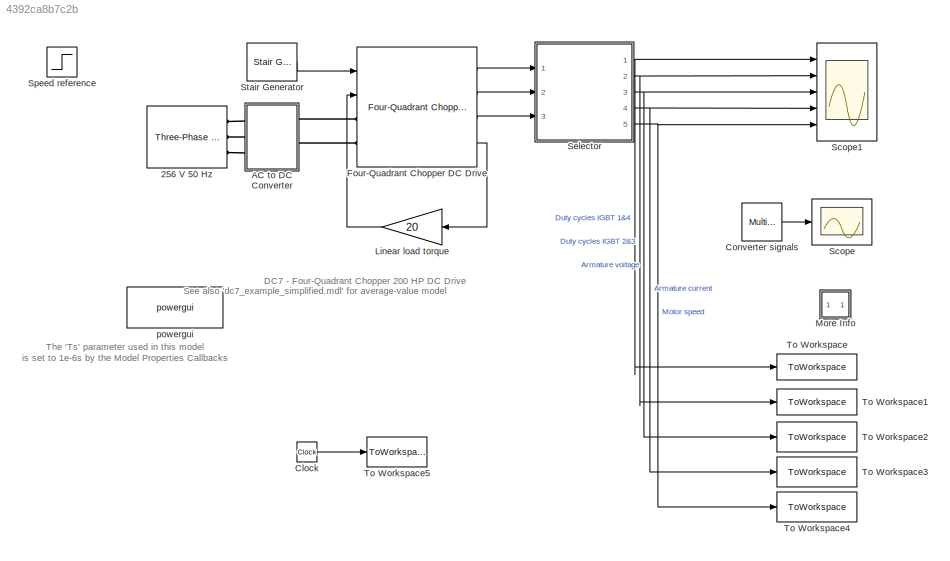
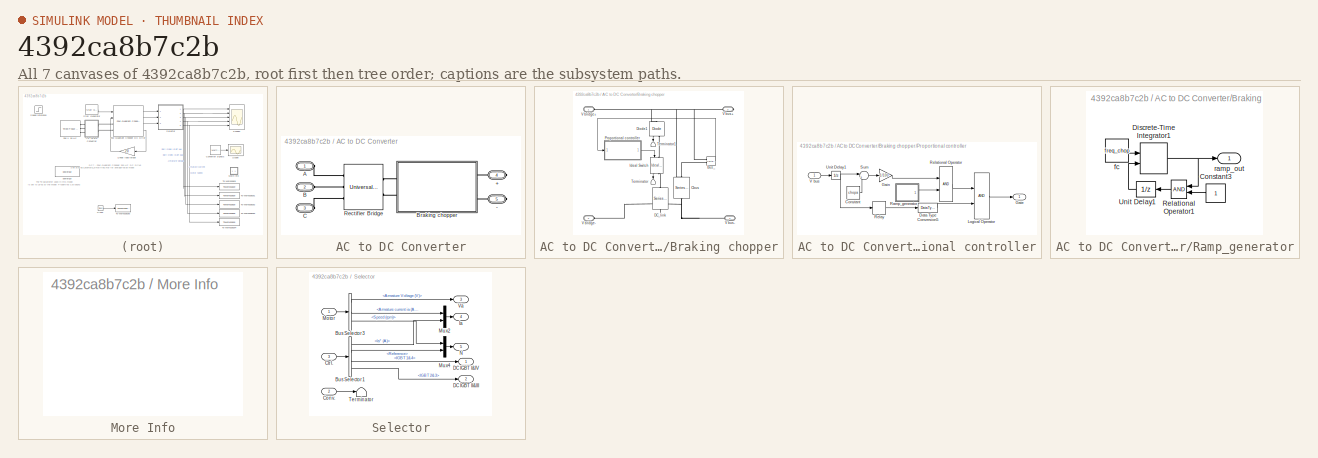
[diagram: thumbnail index - all 7 canvases of the model, root first then tree order]
MODEL slx_4392ca8b7c2b
KIND model
CONFIG AbsTol = auto
CONFIG EnableMultiTasking = on
CONFIG FixedStep = auto
CONFIG MaxStep = auto
CONFIG MinStep = auto
CONFIG PreLoadFcn = assignin('base','Ts',1e-6)
CONFIG RelTol = 1e-3
CONFIG SampleTimeConstraint = Unconstrained
CONFIG Solver = FixedStepDiscrete
CONFIG SolverName = FixedStepDiscrete
CONFIG StartTime = 0.0
CONFIG StopTime = 10
BLOCK [Reference] 256 V  50 Hz  REF=powerlib/Electrical
Sources/Three-Phase Source
  Ports = [0, 0, 0, 0, 0, 0, 3]
  SourceBlock = powerlib/Electrical\nSources/Three-Phase Source
  SourceProductBaseCode = PS
  SourceProductName = Simscape Electrical
  SourceType = Three-Phase Source
BLOCK [SubSystem] AC to DC Converter
  Ports = [0, 0, 0, 0, 0, 3, 2]
  RequestExecContextInheritance = off
BLOCK [PMIOPort] AC to DC Converter/+
  Port = 4
  Side = Right
BLOCK [PMIOPort] AC to DC Converter/-
  Port = 5
  Side = Right
BLOCK [PMIOPort] AC to DC Converter/A
  Side = Left
BLOCK [PMIOPort] AC to DC Converter/B
  Port = 2
  Side = Left
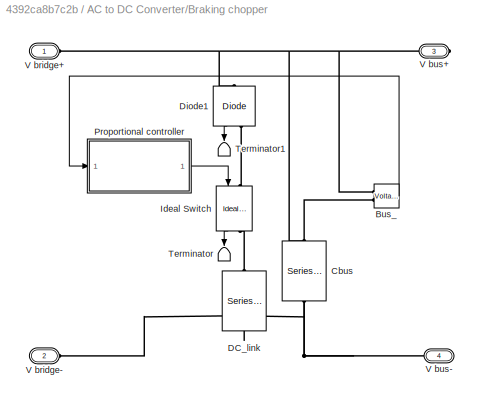
BLOCK [SubSystem] AC to DC Converter/Braking chopper
  Ports = [0, 0, 0, 0, 0, 2, 2]
  RequestExecContextInheritance = off
BLOCK [Reference] AC to DC Converter/Braking chopper/Bus_  REF=powerlib/Measurements/Voltage Measurement
  AttributesFormatString = \n
  Ports = [0, 1, 0, 0, 0, 2]
  SourceBlock = powerlib/Measurements/Voltage Measurement
  SourceProductBaseCode = PS
  SourceProductName = Simscape Electrical
  SourceType = Voltage Measurement
  Tag = PoWeRsYsTeMmEaSuReMeNt
BLOCK [Reference] AC to DC Converter/Braking chopper/Cbus  REF=powerlib/Elements/Series RLC Branch
  Ports = [0, 0, 0, 0, 0, 1, 1]
  SourceBlock = powerlib/Elements/Series RLC Branch
  SourceProductBaseCode = PS
  SourceProductName = Simscape Electrical
  SourceType = Series RLC Branch
BLOCK [Reference] AC to DC Converter/Braking chopper/DC_link  REF=powerlib/Elements/Series RLC Branch
  Ports = [0, 0, 0, 0, 0, 1, 1]
  SourceBlock = powerlib/Elements/Series RLC Branch
  SourceProductBaseCode = PS
  SourceProductName = Simscape Electrical
  SourceType = Series RLC Branch
BLOCK [Reference] AC to DC Converter/Braking chopper/Diode1  REF=powerlib/Power
Electronics/Diode
  AttributesFormatString = \n
  Ports = [0, 1, 0, 0, 0, 1, 1]
  SourceBlock = powerlib/Power\nElectronics/Diode
  SourceProductBaseCode = PS
  SourceProductName = Simscape Electrical
  SourceType = Diode
BLOCK [Reference] AC to DC Converter/Braking chopper/Ideal Switch  REF=powerlib/Power
Electronics/Ideal Switch
  AttributesFormatString = \n
  Ports = [1, 1, 0, 0, 0, 1, 1]
  SourceBlock = powerlib/Power\nElectronics/Ideal Switch
  SourceProductBaseCode = PS
  SourceProductName = Simscape Electrical
  SourceType = Ideal Switch
BLOCK [SubSystem] AC to DC Converter/Braking chopper/Proportional controller
  Ports = [1, 1]
  RequestExecContextInheritance = off
BLOCK [Constant] AC to DC Converter/Braking chopper/Proportional controller/Constant
  Value = chopa
BLOCK [DataTypeConversion] AC to DC Converter/Braking chopper/Proportional controller/Data Type Conversion5
BLOCK [Gain] AC to DC Converter/Braking chopper/Proportional controller/Gain
  Gain = 1/100
BLOCK [Outport] AC to DC Converter/Braking chopper/Proportional controller/Gate
  IconDisplay = Port number
BLOCK [Logic] AC to DC Converter/Braking chopper/Proportional controller/Logical Operator
  Ports = [2, 1]
BLOCK [SubSystem] AC to DC Converter/Braking chopper/Proportional controller/Ramp_generator
  Ports = [0, 1]
  RequestExecContextInheritance = off
BLOCK [Constant] AC to DC Converter/Braking chopper/Proportional controller/Ramp_generator/Constant3
BLOCK [DiscreteIntegrator] AC to DC Converter/Braking chopper/Proportional controller/Ramp_generator/Discrete-Time Integrator1
  ExternalReset = rising
  ICPrevOutput = DiscIntNeverNeededParam
  ICPrevScaledInput = DiscIntNeverNeededParam
  Ports = [2, 1]
  SampleTime = Ts
BLOCK [RelationalOperator] AC to DC Converter/Braking chopper/Proportional controller/Ramp_generator/Relational Operator1
  Ports = [2, 1]
BLOCK [UnitDelay] AC to DC Converter/Braking chopper/Proportional controller/Ramp_generator/Unit Delay1
  SampleTime = Ts
BLOCK [Constant] AC to DC Converter/Braking chopper/Proportional controller/Ramp_generator/fc
  Value = freq_chop
BLOCK [Outport] AC to DC Converter/Braking chopper/Proportional controller/Ramp_generator/ramp_out
  IconDisplay = Port number
BLOCK [RelationalOperator] AC to DC Converter/Braking chopper/Proportional controller/Relational Operator
  Ports = [2, 1]
BLOCK [Relay] AC to DC Converter/Braking chopper/Proportional controller/Relay
  OffSwitchValue = chopd
  OnSwitchValue = chopa
BLOCK [Sum] AC to DC Converter/Braking chopper/Proportional controller/Sum
  IconShape = round
  Inputs = |+-
  Ports = [2, 1]
BLOCK [UnitDelay] AC to DC Converter/Braking chopper/Proportional controller/Unit Delay1
  SampleTime = Ts
BLOCK [Inport] AC to DC Converter/Braking chopper/Proportional controller/V bus
  IconDisplay = Port number
BLOCK [Terminator] AC to DC Converter/Braking chopper/Terminator
BLOCK [Terminator] AC to DC Converter/Braking chopper/Terminator1
BLOCK [PMIOPort] AC to DC Converter/Braking chopper/V bridge+
  Side = Left
BLOCK [PMIOPort] AC to DC Converter/Braking chopper/V bridge-
  Port = 2
  Side = Left
BLOCK [PMIOPort] AC to DC Converter/Braking chopper/V bus+
  Port = 3
  Side = Right
BLOCK [PMIOPort] AC to DC Converter/Braking chopper/V bus-
  Port = 4
  Side = Right
BLOCK [PMIOPort] AC to DC Converter/C
  Port = 3
  Side = Left
BLOCK [Reference] AC to DC Converter/Rectifier Bridge  REF=powerlib/Power
Electronics/Universal Bridge
  AttributesFormatString = \n
  Ports = [0, 0, 0, 0, 0, 3, 2]
  SourceBlock = powerlib/Power\nElectronics/Universal Bridge
  SourceProductBaseCode = PS
  SourceProductName = Simscape Electrical
  SourceType = Universal Bridge
BLOCK [Clock] Clock
BLOCK [Reference] Converter signals  REF=powerlib/Measurements/Multimeter
  Ports = [0, 1]
  SourceBlock = powerlib/Measurements/Multimeter
  SourceProductBaseCode = PS
  SourceProductName = Simscape Electrical
  SourceType = MultimeterPSB
BLOCK [Reference] Four-Quadrant Chopper DC Drive  REF=electricdrivelib/DC drives/Four-Quadrant
Chopper DC Drive
  Ports = [2, 4, 0, 0, 0, 2]
  SourceBlock = electricdrivelib/DC drives/Four-Quadrant\nChopper DC Drive
  SourceProductBaseCode = PS
  SourceProductName = Simscape Electrical
  SourceType = Four-Quadrant Chopper DC Drive
BLOCK [Gain] Linear load torque
  Gain = 20
BLOCK [SubSystem] More Info
  OpenFcn = showdemo(bdroot(gcb))
  Ports = []
  RequestExecContextInheritance = off
BLOCK [Scope] Scope
  Floating = off
  NumInputPorts = 1
  Ports = [1]
  ScopeSpecificationString = C++SS(StrPVP('Location','[12, 55, 1228, 294]'),StrPVP('Open','off'),StrPVP('ZoomMode','yonly'),MxPVP('AxesTitles',53,'struct(''axes1'',''%<SignalLabel>'')'),StrPVP('ShowLegends','off'),StrPVP('YMin','524'),StrPVP('YMax','529.5'),StrPVP('SaveName','ScopeData1'),StrPVP('DataFormat','StructureWithTime'),StrPVP('LimitDataPoints','off'),StrPVP('Decimation','25'),StrPVP('BlockParamSampleTime','0'),StrPV...<+60ch>
BLOCK [Scope] Scope1
  Floating = off
  NumInputPorts = 5
  Ports = [5]
  ScopeSpecificationString = Simulink.scopes.TimeScopeBlockCfg('CurrentConfiguration', extmgr.ConfigurationSet(extmgr.Configuration('Core','General UI',true),extmgr.Configuration('Core','Source UI',true),extmgr.Configuration('Sources','WiredSimulink',true,'DataLoggingSaveFormat','StructureWithTime','DataLoggingDecimation','25','DataLoggingDecimateData',true),extmgr.Configuration('Visuals','Time Domain',true,'SerializedDisplay...<+4513ch>
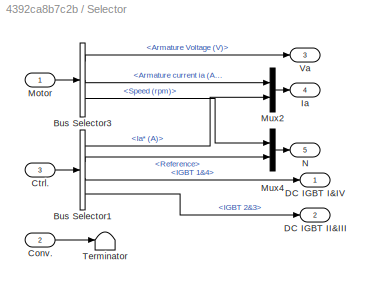
BLOCK [SubSystem] Selector
  Ports = [3, 5]
  RequestExecContextInheritance = off
BLOCK [BusSelector] Selector/Bus Selector1
  OutputAsBus = off
  OutputSignals = Ia* (A),Reference,Duty Cycles.IGBT 1&4,Duty Cycles.IGBT 2&3
  Ports = [1, 4]
BLOCK [BusSelector] Selector/Bus Selector3
  OutputAsBus = off
  OutputSignals = Armature Voltage (V),Armature current ia (A),Speed (rpm)
  Ports = [1, 3]
BLOCK [Inport] Selector/Conv.
  IconDisplay = Port number
  Port = 2
BLOCK [Inport] Selector/Ctrl.
  IconDisplay = Port number
  Port = 3
BLOCK [Outport] Selector/DC IGBT I&IV
  IconDisplay = Port number
BLOCK [Outport] Selector/DC IGBT II&III
  IconDisplay = Port number
  Port = 2
BLOCK [Outport] Selector/Ia
  IconDisplay = Port number
  Port = 4
BLOCK [Inport] Selector/Motor
  IconDisplay = Port number
BLOCK [Mux] Selector/Mux2
  DisplayOption = bar
  Inputs = 2
  Ports = [2, 1]
BLOCK [Mux] Selector/Mux4
  DisplayOption = bar
  Inputs = 2
  Ports = [2, 1]
BLOCK [Outport] Selector/N
  IconDisplay = Port number
  Port = 5
BLOCK [Terminator] Selector/Terminator
BLOCK [Outport] Selector/Va
  IconDisplay = Port number
  Port = 3
BLOCK [Step] Speed reference
  After = 840
  SampleTime = 0
  Time = 2
BLOCK [Reference] Stair Generator  REF=powerlib_meascontrol/Pulse & Signal
Generators/Stair
Generator
  Ports = [0, 1]
  SourceBlock = powerlib_meascontrol/Pulse & Signal\nGenerators/Stair\nGenerator
  SourceProductBaseCode = PS
  SourceProductName = Simscape Power Systems
  SourceType = Stair Generator
BLOCK [ToWorkspace] To Workspace
  FixptAsFi = on
  MaxDataPoints = inf
  Ports = [1]
  SampleTime = -1
  Save2DSignal = 2-D array (concatenate along first dimension)
  VariableName = DutyCycleIGBT14
BLOCK [ToWorkspace] To Workspace1
  FixptAsFi = on
  MaxDataPoints = inf
  Ports = [1]
  SampleTime = -1
  Save2DSignal = 2-D array (concatenate along first dimension)
  VariableName = DutyCycleIGBT23
BLOCK [ToWorkspace] To Workspace2
  FixptAsFi = on
  MaxDataPoints = inf
  Ports = [1]
  SampleTime = -1
  Save2DSignal = 2-D array (concatenate along first dimension)
  VariableName = ArmatureVoltage
BLOCK [ToWorkspace] To Workspace3
  FixptAsFi = on
  MaxDataPoints = inf
  Ports = [1]
  SampleTime = -1
  Save2DSignal = 2-D array (concatenate along first dimension)
  VariableName = ArmatureCurrent
BLOCK [ToWorkspace] To Workspace4
  FixptAsFi = on
  MaxDataPoints = inf
  Ports = [1]
  SampleTime = -1
  Save2DSignal = 2-D array (concatenate along first dimension)
  VariableName = MotorSpeed
BLOCK [ToWorkspace] To Workspace5
  FixptAsFi = on
  MaxDataPoints = inf
  Ports = [1]
  SampleTime = -1
  Save2DSignal = 2-D array (concatenate along first dimension)
  VariableName = t
BLOCK [Reference] powergui  REF=powerlib/powergui
  Ports = []
  Priority = 2
  SourceBlock = powerlib/powergui
  SourceProductBaseCode = PS
  SourceProductName = Simscape Power Systems
  SourceType = PSB option menu block
ANNOTATION (root): DC7 - Four-Quadrant Chopper 200 HP DC Drive
ANNOTATION (root): See also 'dc7_example_simplified.mdl' for average-value model
ANNOTATION (root): The 'Ts' parameter used in this model is set to 1e-6s by the Model Properties Callbacks
LINE AC to DC Converter/Braking chopper/Bus_:1 -> AC to DC Converter/Braking chopper/Proportional controller:1
LINE AC to DC Converter/Braking chopper/Diode1:1 -> AC to DC Converter/Braking chopper/Terminator1:1
LINE AC to DC Converter/Braking chopper/Ideal Switch:1 -> AC to DC Converter/Braking chopper/Terminator:1
LINE AC to DC Converter/Braking chopper/Proportional controller/Constant:1 -> AC to DC Converter/Braking chopper/Proportional controller/Sum:2
LINE AC to DC Converter/Braking chopper/Proportional controller/Data Type Conversion5:1 -> AC to DC Converter/Braking chopper/Proportional controller/Logical Operator:2
LINE AC to DC Converter/Braking chopper/Proportional controller/Gain:1 -> AC to DC Converter/Braking chopper/Proportional controller/Relational Operator:1
LINE AC to DC Converter/Braking chopper/Proportional controller/Logical Operator:1 -> AC to DC Converter/Braking chopper/Proportional controller/Gate:1
LINE AC to DC Converter/Braking chopper/Proportional controller/Ramp_generator/Constant3:1 -> AC to DC Converter/Braking chopper/Proportional controller/Ramp_generator/Relational Operator1:2
NET AC to DC Converter/Braking chopper/Proportional controller/Ramp_generator/Discrete-Time Integrator1:1 -> AC to DC Converter/Braking chopper/Proportional controller/Ramp_generator/Relational Operator1:1, AC to DC Converter/Braking chopper/Proportional controller/Ramp_generator/ramp_out:1
LINE AC to DC Converter/Braking chopper/Proportional controller/Ramp_generator/Relational Operator1:1 -> AC to DC Converter/Braking chopper/Proportional controller/Ramp_generator/Unit Delay1:1
LINE AC to DC Converter/Braking chopper/Proportional controller/Ramp_generator/Unit Delay1:1 -> AC to DC Converter/Braking chopper/Proportional controller/Ramp_generator/Discrete-Time Integrator1:2
LINE AC to DC Converter/Braking chopper/Proportional controller/Ramp_generator/fc:1 -> AC to DC Converter/Braking chopper/Proportional controller/Ramp_generator/Discrete-Time Integrator1:1
LINE AC to DC Converter/Braking chopper/Proportional controller/Ramp_generator:1 -> AC to DC Converter/Braking chopper/Proportional controller/Relational Operator:2
LINE AC to DC Converter/Braking chopper/Proportional controller/Relational Operator:1 -> AC to DC Converter/Braking chopper/Proportional controller/Logical Operator:1
LINE AC to DC Converter/Braking chopper/Proportional controller/Relay:1 -> AC to DC Converter/Braking chopper/Proportional controller/Data Type Conversion5:1
LINE AC to DC Converter/Braking chopper/Proportional controller/Sum:1 -> AC to DC Converter/Braking chopper/Proportional controller/Gain:1
NET AC to DC Converter/Braking chopper/Proportional controller/Unit Delay1:1 -> AC to DC Converter/Braking chopper/Proportional controller/Relay:1, AC to DC Converter/Braking chopper/Proportional controller/Sum:1
LINE AC to DC Converter/Braking chopper/Proportional controller/V bus:1 -> AC to DC Converter/Braking chopper/Proportional controller/Unit Delay1:1
LINE AC to DC Converter/Braking chopper/Proportional controller:1 -> AC to DC Converter/Braking chopper/Ideal Switch:1
LINE Clock:1 -> To Workspace5:1
LINE Converter signals:1 -> Scope:1
LINE Four-Quadrant Chopper DC Drive:1 -> Selector:1
LINE Four-Quadrant Chopper DC Drive:2 -> Selector:2
LINE Four-Quadrant Chopper DC Drive:3 -> Selector:3
LINE Four-Quadrant Chopper DC Drive:4 -> Linear load torque:1
LINE Linear load torque:1 -> Four-Quadrant Chopper DC Drive:2
LINE Selector/Bus Selector1:1 -> Selector/Mux2:2
LINE Selector/Bus Selector1:2 -> Selector/Mux4:2
LINE Selector/Bus Selector1:3 -> Selector/DC IGBT I&IV:1
LINE Selector/Bus Selector1:4 -> Selector/DC IGBT II&III:1
LINE Selector/Bus Selector3:1 -> Selector/Va:1
LINE Selector/Bus Selector3:2 -> Selector/Mux2:1
LINE Selector/Bus Selector3:3 -> Selector/Mux4:1
LINE Selector/Conv.:1 -> Selector/Terminator:1
LINE Selector/Ctrl.:1 -> Selector/Bus Selector1:1
LINE Selector/Motor:1 -> Selector/Bus Selector3:1
LINE Selector/Mux2:1 -> Selector/Ia:1
LINE Selector/Mux4:1 -> Selector/N:1
NET Selector:1 -> Scope1:1, To Workspace:1
NET Selector:2 -> Scope1:2, To Workspace1:1
NET Selector:3 -> Scope1:3, To Workspace2:1
NET Selector:4 -> Scope1:4, To Workspace3:1
NET Selector:5 -> Scope1:5, To Workspace4:1
LINE Stair Generator:1 -> Four-Quadrant Chopper DC Drive:1
PLINE 256 V  50 Hz:RConn1 -- AC to DC Converter:LConn1
PLINE 256 V  50 Hz:RConn2 -- AC to DC Converter:LConn2
PLINE 256 V  50 Hz:RConn3 -- AC to DC Converter:LConn3
PLINE AC to DC Converter/+:RConn1 -- AC to DC Converter/Braking chopper:RConn1
PLINE AC to DC Converter/-:RConn1 -- AC to DC Converter/Braking chopper:RConn2
PLINE AC to DC Converter/A:RConn1 -- AC to DC Converter/Rectifier Bridge:LConn1
PLINE AC to DC Converter/B:RConn1 -- AC to DC Converter/Rectifier Bridge:LConn2
PNET net1: AC to DC Converter/Braking chopper/Bus_:LConn1 -- AC to DC Converter/Braking chopper/Cbus:LConn1 -- AC to DC Converter/Braking chopper/Diode1:LConn1 -- AC to DC Converter/Braking chopper/V bridge+:RConn1 -- AC to DC Converter/Braking chopper/V bus+:RConn1
PNET net2: AC to DC Converter/Braking chopper/Bus_:LConn2 -- AC to DC Converter/Braking chopper/Cbus:RConn1 -- AC to DC Converter/Braking chopper/DC_link:RConn1 -- AC to DC Converter/Braking chopper/V bridge-:RConn1 -- AC to DC Converter/Braking chopper/V bus-:RConn1
PLINE AC to DC Converter/Braking chopper/DC_link:LConn1 -- AC to DC Converter/Braking chopper/Ideal Switch:RConn1
PLINE AC to DC Converter/Braking chopper/Diode1:RConn1 -- AC to DC Converter/Braking chopper/Ideal Switch:LConn1
PLINE AC to DC Converter/Braking chopper:LConn1 -- AC to DC Converter/Rectifier Bridge:RConn1
PLINE AC to DC Converter/Braking chopper:LConn2 -- AC to DC Converter/Rectifier Bridge:RConn2
PLINE AC to DC Converter/C:RConn1 -- AC to DC Converter/Rectifier Bridge:LConn3
PLINE AC to DC Converter:RConn1 -- Four-Quadrant Chopper DC Drive:LConn1
PLINE AC to DC Converter:RConn2 -- Four-Quadrant Chopper DC Drive:LConn2
note: NET lines group one-source signal fan-out (src -> all destinations, sorted); 1:1 wires keep LINE; PNET lines group multi-terminal physical nets as a canonical sorted terminal list (undirected conserving connections); 2-terminal nets keep the pairwise PLINE form
